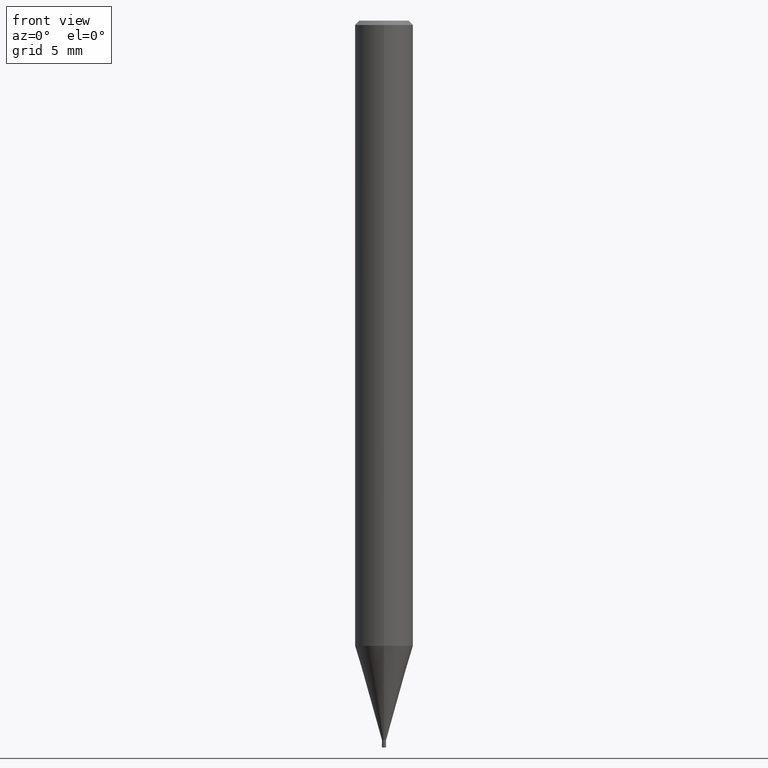
[diagram: clean part render]
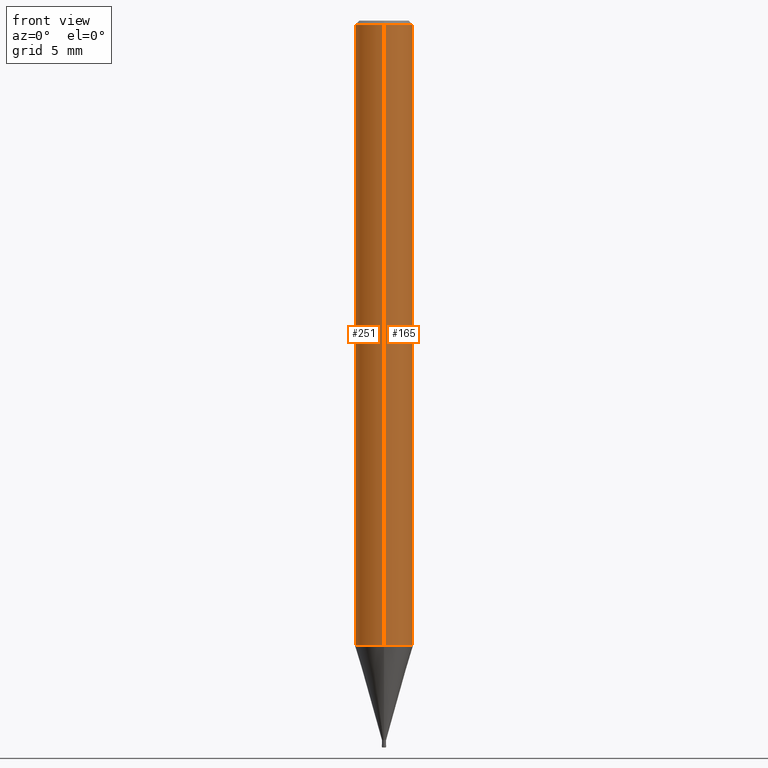
[diagram: same view with one multi-face feature highlighted, each face labeled with its STEP entity id]
A machine part, front view. The highlighted faces form ONE feature: a constant-radius fillet chain: 2 tangent blend faces with common blend radius 2 mm. The faces share edges in the B-rep.
Their STEP definitions:
[1] entity #165 (Cylinder):
#165=ADVANCED_FACE('',(#405),#406,.T.);
#177=VERTEX_POINT('',#419);
#217=VERTEX_POINT('',#463);
#227=EDGE_CURVE('',#177,#275,#473,.T.);
#231=VERTEX_POINT('',#478);
#249=EDGE_CURVE('',#231,#275,#498,.T.);
#253=EDGE_CURVE('',#231,#217,#503,.T.);
#275=VERTEX_POINT('',#530);
#347=EDGE_CURVE('',#217,#177,#611,.T.);
#405=FACE_OUTER_BOUND('',#669,.T.);
#406=CYLINDRICAL_SURFACE('',#670,2.0);
#419=CARTESIAN_POINT('',(2.44921270764475E-016,-2.0,-43.003));
#463=CARTESIAN_POINT('',(0.0,2.0,-43.003));
#473=LINE('',#754,#755);
#478=CARTESIAN_POINT('',(0.0,2.0,-0.289999999999999));
#498=CIRCLE('',#787,2.0);
#503=LINE('',#793,#794);
#530=CARTESIAN_POINT('',(2.44921270764475E-016,-2.0,-0.289999999999999));
#611=CIRCLE('',#933,2.0);
#669=EDGE_LOOP('',(#992,#993,#994,#995));
#670=AXIS2_PLACEMENT_3D('',#996,#997,#998);
#754=CARTESIAN_POINT('',(2.44921270764475E-016,-2.0,-21.6465));
#755=VECTOR('',#1059,1.0);
#787=AXIS2_PLACEMENT_3D('',#1097,#1098,#1099);
#793=CARTESIAN_POINT('',(-2.44921270764475E-016,2.0,-21.6465));
#794=VECTOR('',#1108,1.0);
#933=AXIS2_PLACEMENT_3D('',#1251,#1252,#1253);
#992=ORIENTED_EDGE('',*,*,#253,.F.);
#993=ORIENTED_EDGE('',*,*,#249,.T.);
#994=ORIENTED_EDGE('',*,*,#227,.F.);
#995=ORIENTED_EDGE('',*,*,#347,.F.);
#996=CARTESIAN_POINT('',(0.0,0.0,-21.6465));
#997=DIRECTION('',(-0.0,-0.0,1.0));
#998=DIRECTION('',(0.0,1.0,0.0));
#1059=DIRECTION('',(-0.0,-0.0,1.0));
#1097=CARTESIAN_POINT('',(0.0,0.0,-0.289999999999999));
#1098=DIRECTION('',(0.0,0.0,-1.0));
#1099=DIRECTION('',(0.0,1.0,0.0));
#1108=DIRECTION('',(0.0,0.0,-1.0));
#1251=CARTESIAN_POINT('',(0.0,0.0,-43.003));
#1252=DIRECTION('',(0.0,0.0,-1.0));
#1253=DIRECTION('',(0.0,1.0,0.0));
[2] entity #251 (Cylinder):
#177=VERTEX_POINT('',#419);
#217=VERTEX_POINT('',#463);
#227=EDGE_CURVE('',#177,#275,#473,.T.);
#231=VERTEX_POINT('',#478);
#243=EDGE_CURVE('',#177,#217,#492,.T.);
#251=ADVANCED_FACE('',(#500),#501,.T.);
#253=EDGE_CURVE('',#231,#217,#503,.T.);
#275=VERTEX_POINT('',#530);
#313=EDGE_CURVE('',#275,#231,#573,.T.);
#419=CARTESIAN_POINT('',(2.44921270764475E-016,-2.0,-43.003));
#463=CARTESIAN_POINT('',(0.0,2.0,-43.003));
#473=LINE('',#754,#755);
#478=CARTESIAN_POINT('',(0.0,2.0,-0.289999999999999));
#492=CIRCLE('',#778,2.0);
#500=FACE_OUTER_BOUND('',#789,.T.);
#501=CYLINDRICAL_SURFACE('',#790,2.0);
#503=LINE('',#793,#794);
#530=CARTESIAN_POINT('',(2.44921270764475E-016,-2.0,-0.289999999999999));
#573=CIRCLE('',#879,2.0);
#754=CARTESIAN_POINT('',(2.44921270764475E-016,-2.0,-21.6465));
#755=VECTOR('',#1059,1.0);
#778=AXIS2_PLACEMENT_3D('',#1088,#1089,#1090);
#789=EDGE_LOOP('',(#1101,#1102,#1103,#1104));
#790=AXIS2_PLACEMENT_3D('',#1105,#1106,#1107);
#793=CARTESIAN_POINT('',(-2.44921270764475E-016,2.0,-21.6465));
#794=VECTOR('',#1108,1.0);
#879=AXIS2_PLACEMENT_3D('',#1203,#1204,#1205);
#1059=DIRECTION('',(-0.0,-0.0,1.0));
#1088=CARTESIAN_POINT('',(0.0,0.0,-43.003));
#1089=DIRECTION('',(0.0,0.0,-1.0));
#1090=DIRECTION('',(0.0,1.0,0.0));
#1101=ORIENTED_EDGE('',*,*,#253,.T.);
#1102=ORIENTED_EDGE('',*,*,#243,.F.);
#1103=ORIENTED_EDGE('',*,*,#227,.T.);
#1104=ORIENTED_EDGE('',*,*,#313,.T.);
#1105=CARTESIAN_POINT('',(0.0,0.0,-21.6465));
#1106=DIRECTION('',(-0.0,-0.0,1.0));
#1107=DIRECTION('',(0.0,1.0,0.0));
#1108=DIRECTION('',(0.0,0.0,-1.0));
#1203=CARTESIAN_POINT('',(0.0,0.0,-0.289999999999999));
#1204=DIRECTION('',(0.0,0.0,-1.0));
#1205=DIRECTION('',(0.0,1.0,0.0));